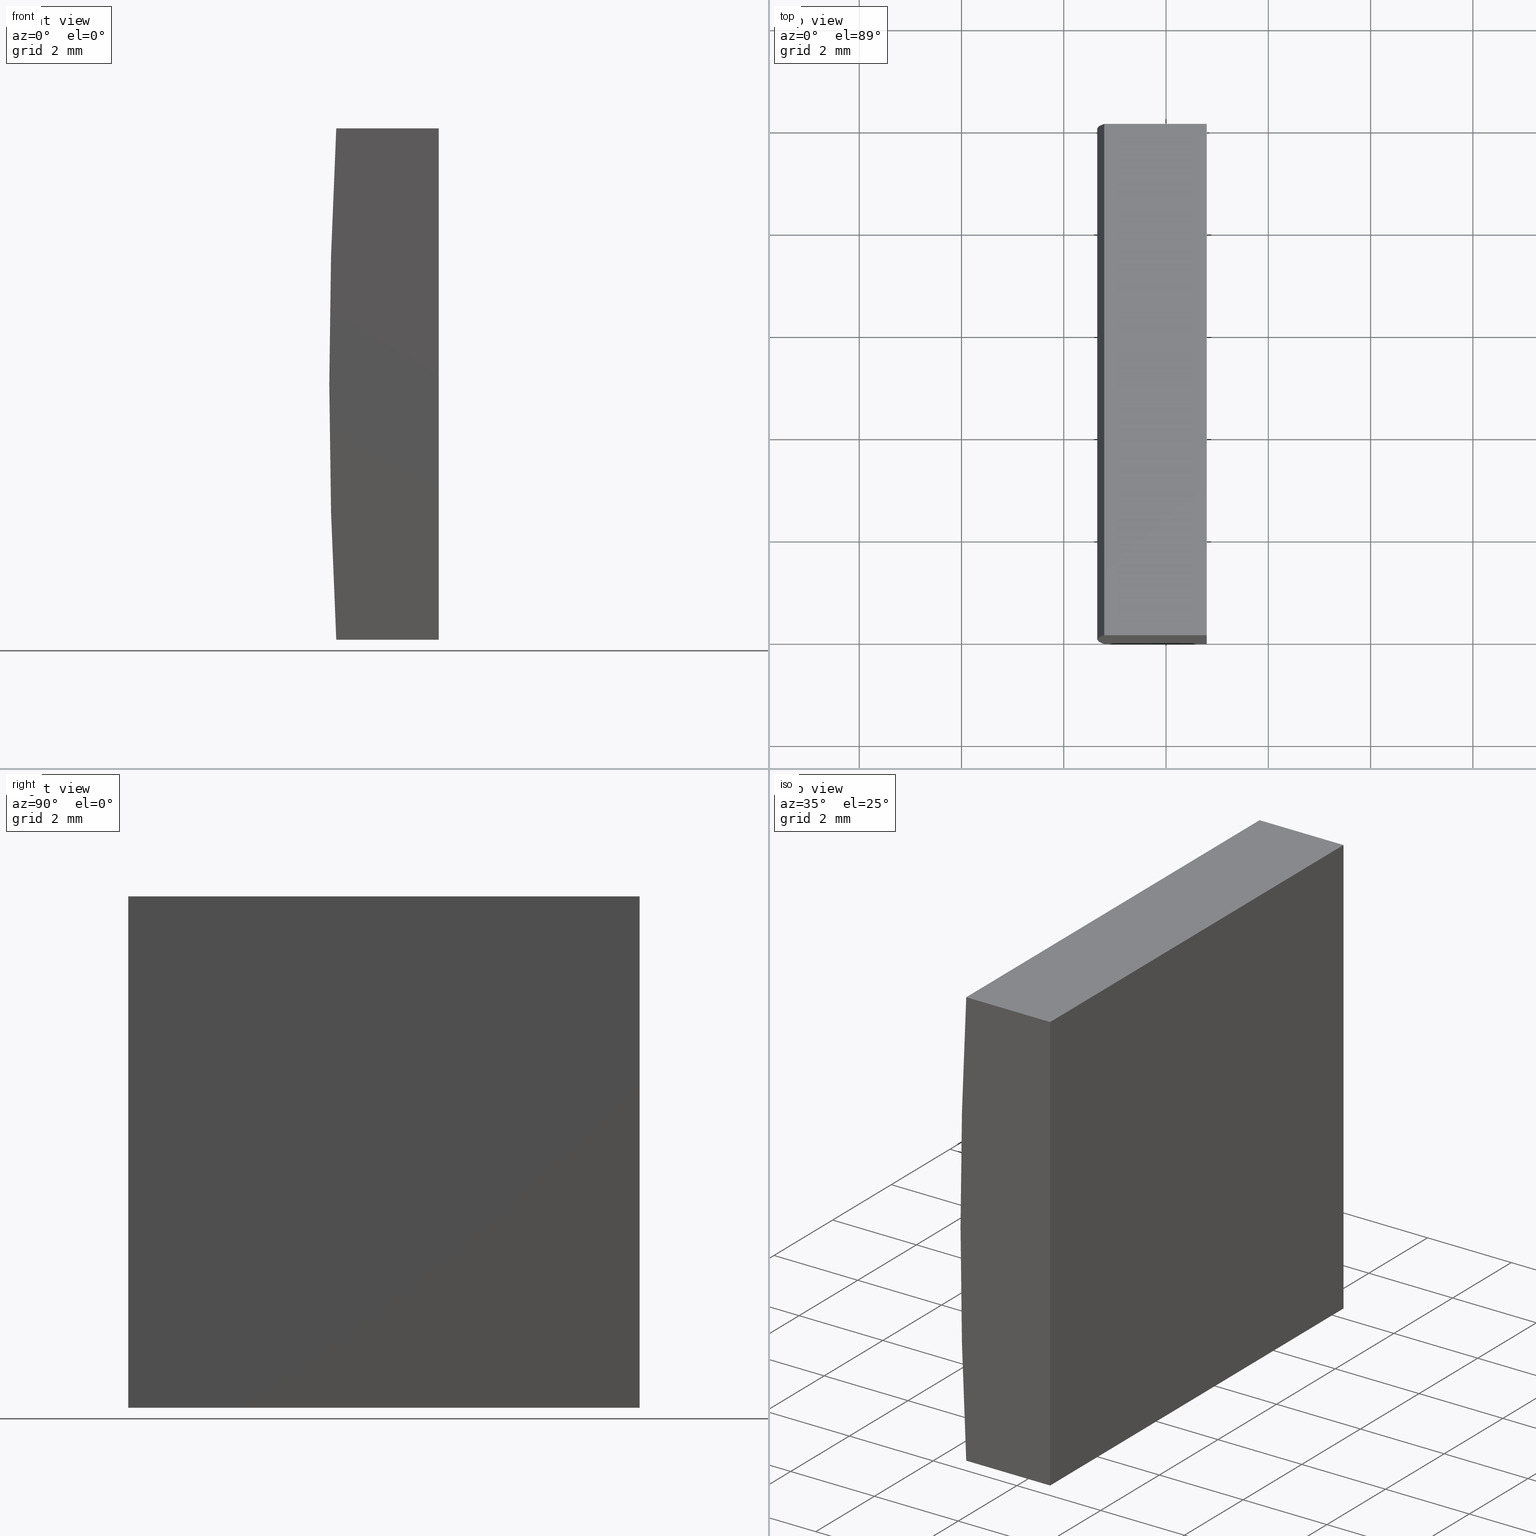
[diagram: canonical four-view strip — front | top / right | iso, engineering-drawing reading convention]
A machine part, canonical four-view strip (front | top / right | iso — engineering-drawing reading convention). The complete STEP part file that produces these views, byte-faithful:
ISO-10303-21;
HEADER;
FILE_DESCRIPTION (( 'STEP AP214' ),
    '1' );
FILE_NAME ('155272.STEP',
    '2019-06-25T06:01:40',
    ( 'user' ),
    ( '΢���й�' ),
    'SwSTEP 2.0',
    'SolidWorks 2016',
    '' );
FILE_SCHEMA (( 'AUTOMOTIVE_DESIGN' ));
ENDSEC;

DATA;
#1 = SURFACE_STYLE_FILL_AREA ( #93 ) ;
#2 = EDGE_CURVE ( 'NONE', #137, #111, #34, .T. ) ;
#3 = LINE ( 'NONE', #196, #155 ) ;
#4 = DIRECTION ( 'NONE',  ( -0.0000000000000000000, -1.000000000000000000, -0.0000000000000000000 ) ) ;
#5 = PRODUCT_DEFINITION_CONTEXT ( 'detailed design', #28, 'design' ) ;
#6 = DIRECTION ( 'NONE',  ( 0.0000000000000000000, 1.000000000000000000, 0.0000000000000000000 ) ) ;
#7 = PRODUCT_DEFINITION ( 'δ֪', '', #169, #5 ) ;
#8 = ORIENTED_EDGE ( 'NONE', *, *, #191, .F. ) ;
#9 =( NAMED_UNIT ( * ) PLANE_ANGLE_UNIT ( ) SI_UNIT ( $, .RADIAN. ) );
#10 = ADVANCED_FACE ( 'NONE', ( #199 ), #98, .F. ) ;
#11 = LINE ( 'NONE', #56, #136 ) ;
#12 = ADVANCED_FACE ( 'NONE', ( #130 ), #51, .F. ) ;
#13 = EDGE_CURVE ( 'NONE', #197, #67, #171, .T. ) ;
#14 = COLOUR_RGB ( '',1.000000000000000000, 1.000000000000000000, 1.000000000000000000 ) ;
#15 = EDGE_LOOP ( 'NONE', ( #118, #105, #8, #97 ) ) ;
#16 = CARTESIAN_POINT ( 'NONE',  ( -85.20479566514873700, 0.0000000000000000000, -4.999999999999987600 ) ) ;
#17 = CIRCLE ( 'NONE', #134, 91.70000000000000300 ) ;
#18 = DIRECTION ( 'NONE',  ( 0.0000000000000000000, 1.000000000000000000, 0.0000000000000000000 ) ) ;
#19 = PRODUCT ( '155272', '155272', '', ( #82 ) ) ;
#20 = EDGE_LOOP ( 'NONE', ( #120, #70, #178, #161 ) ) ;
#21 =( NAMED_UNIT ( * ) PLANE_ANGLE_UNIT ( ) SI_UNIT ( $, .RADIAN. ) );
#22 = PRESENTATION_STYLE_ASSIGNMENT (( #65 ) ) ;
#23 = CLOSED_SHELL ( 'NONE', ( #24, #200, #29, #10, #190, #12 ) ) ;
#24 = ADVANCED_FACE ( 'NONE', ( #147 ), #71, .T. ) ;
#25 = AXIS2_PLACEMENT_3D ( 'NONE', #33, #173, #50 ) ;
#26 = ORIENTED_EDGE ( 'NONE', *, *, #99, .T. ) ;
#27 = DIRECTION ( 'NONE',  ( -1.000000000000000000, -0.0000000000000000000, -6.060670037416406300E-015 ) ) ;
#28 = APPLICATION_CONTEXT ( 'automotive_design' ) ;
#29 = ADVANCED_FACE ( 'NONE', ( #133 ), #72, .F. ) ;
#30 =( NAMED_UNIT ( * ) SI_UNIT ( $, .STERADIAN. ) SOLID_ANGLE_UNIT ( ) );
#31 = ADVANCED_BREP_SHAPE_REPRESENTATION ( '155272', ( #49, #129 ), #88 ) ;
#32 = ORIENTED_EDGE ( 'NONE', *, *, #60, .T. ) ;
#33 = CARTESIAN_POINT ( 'NONE',  ( 4.355204334851265500, 10.00000000000000000, 4.286263797015675000E-017 ) ) ;
#34 = LINE ( 'NONE', #85, #193 ) ;
#35 = DIRECTION ( 'NONE',  ( 0.0000000000000000000, -0.0000000000000000000, 1.000000000000000000 ) ) ;
#36 = ORIENTED_EDGE ( 'NONE', *, *, #110, .T. ) ;
#37 = PRESENTATION_STYLE_ASSIGNMENT (( #91 ) ) ;
#38 = DIRECTION ( 'NONE',  ( 1.000000000000000000, 0.0000000000000000000, 0.0000000000000000000 ) ) ;
#39 = CARTESIAN_POINT ( 'NONE',  ( -87.20838012971630300, 10.00000000000000000, 5.000000000000000000 ) ) ;
#40 = UNCERTAINTY_MEASURE_WITH_UNIT (LENGTH_MEASURE( 1.000000000000000100E-005 ), #138, 'distance_accuracy_value', 'NONE');
#41 = PLANE ( 'NONE',  #124 ) ;
#42 = AXIS2_PLACEMENT_3D ( 'NONE', #94, #152, #181 ) ;
#43 = CARTESIAN_POINT ( 'NONE',  ( 4.355204334851265500, 0.0000000000000000000, 4.286263797015675000E-017 ) ) ;
#44 = ORIENTED_EDGE ( 'NONE', *, *, #2, .F. ) ;
#45 = CARTESIAN_POINT ( 'NONE',  ( -87.20838012971630300, 0.0000000000000000000, 5.000000000000000000 ) ) ;
#46 = AXIS2_PLACEMENT_3D ( 'NONE', #166, #153, #62 ) ;
#47 = VECTOR ( 'NONE', #164, 1000.000000000000000 ) ;
#48 = ORIENTED_EDGE ( 'NONE', *, *, #113, .T. ) ;
#49 = MANIFOLD_SOLID_BREP ( '͹̨-����1', #23 ) ;
#50 = DIRECTION ( 'NONE',  ( 0.0000000000000000000, 0.0000000000000000000, -1.000000000000000000 ) ) ;
#51 = PLANE ( 'NONE',  #52 ) ;
#52 = AXIS2_PLACEMENT_3D ( 'NONE', #165, #18, #35 ) ;
#53 = ORIENTED_EDGE ( 'NONE', *, *, #158, .T. ) ;
#54 =( GEOMETRIC_REPRESENTATION_CONTEXT ( 3 ) GLOBAL_UNCERTAINTY_ASSIGNED_CONTEXT ( ( #78 ) ) GLOBAL_UNIT_ASSIGNED_CONTEXT ( ( #167, #21, #89 ) ) REPRESENTATION_CONTEXT ( 'NONE', 'WORKASPACE' ) );
#55 = VECTOR ( 'NONE', #162, 1000.000000000000000 ) ;
#56 = CARTESIAN_POINT ( 'NONE',  ( -85.20479566514873700, 0.0000000000000000000, -4.999999999999987600 ) ) ;
#57 = DIRECTION ( 'NONE',  ( -0.0000000000000000000, -1.000000000000000000, -0.0000000000000000000 ) ) ;
#58 = DIRECTION ( 'NONE',  ( 0.0000000000000000000, 1.000000000000000000, 0.0000000000000000000 ) ) ;
#59 = ORIENTED_EDGE ( 'NONE', *, *, #60, .F. ) ;
#60 = EDGE_CURVE ( 'NONE', #197, #107, #126, .T. ) ;
#61 = LINE ( 'NONE', #195, #114 ) ;
#62 = DIRECTION ( 'NONE',  ( 1.000000000000000000, 0.0000000000000000000, 6.060670037416406300E-015 ) ) ;
#63 = ORIENTED_EDGE ( 'NONE', *, *, #149, .F. ) ;
#64 = VECTOR ( 'NONE', #179, 1000.000000000000000 ) ;
#65 = SURFACE_STYLE_USAGE ( .BOTH. , #112 ) ;
#66 = AXIS2_PLACEMENT_3D ( 'NONE', #43, #6, #141 ) ;
#67 = VERTEX_POINT ( 'NONE', #146 ) ;
#68 = DIRECTION ( 'NONE',  ( 0.0000000000000000000, 0.0000000000000000000, 1.000000000000000000 ) ) ;
#69 = APPLICATION_PROTOCOL_DEFINITION ( 'draft international standard', 'automotive_design', 1998, #148 ) ;
#70 = ORIENTED_EDGE ( 'NONE', *, *, #158, .F. ) ;
#71 = CYLINDRICAL_SURFACE ( 'NONE', #25, 91.70000000000000300 ) ;
#72 = PLANE ( 'NONE',  #42 ) ;
#73 = EDGE_CURVE ( 'NONE', #107, #139, #144, .T. ) ;
#74 = FACE_OUTER_BOUND ( 'NONE', #192, .T. ) ;
#75 = DIRECTION ( 'NONE',  ( 1.000000000000000000, 0.0000000000000000000, 0.0000000000000000000 ) ) ;
#76 = ORIENTED_EDGE ( 'NONE', *, *, #73, .T. ) ;
#77 = SURFACE_STYLE_FILL_AREA ( #90 ) ;
#78 = UNCERTAINTY_MEASURE_WITH_UNIT (LENGTH_MEASURE( 1.000000000000000100E-005 ), #167, 'distance_accuracy_value', 'NONE');
#79 = PRESENTATION_LAYER_ASSIGNMENT (  '', '', ( #170 ) ) ;
#80 = EDGE_LOOP ( 'NONE', ( #184, #32, #36, #26 ) ) ;
#81 = CARTESIAN_POINT ( 'NONE',  ( -85.20479566514873700, 10.00000000000000000, -4.999999999999987600 ) ) ;
#82 = PRODUCT_CONTEXT ( 'NONE', #148, 'mechanical' ) ;
#83 = ORIENTED_EDGE ( 'NONE', *, *, #73, .F. ) ;
#84 = CARTESIAN_POINT ( 'NONE',  ( 0.0000000000000000000, 0.0000000000000000000, 0.0000000000000000000 ) ) ;
#85 = CARTESIAN_POINT ( 'NONE',  ( -85.20479566514873700, 10.00000000000000000, -4.999999999999987600 ) ) ;
#86 = PRODUCT_RELATED_PRODUCT_CATEGORY ( 'part', '', ( #19 ) ) ;
#87 = ORIENTED_EDGE ( 'NONE', *, *, #110, .F. ) ;
#88 =( GEOMETRIC_REPRESENTATION_CONTEXT ( 3 ) GLOBAL_UNCERTAINTY_ASSIGNED_CONTEXT ( ( #40 ) ) GLOBAL_UNIT_ASSIGNED_CONTEXT ( ( #138, #9, #140 ) ) REPRESENTATION_CONTEXT ( 'NONE', 'WORKASPACE' ) );
#89 =( NAMED_UNIT ( * ) SI_UNIT ( $, .STERADIAN. ) SOLID_ANGLE_UNIT ( ) );
#90 = FILL_AREA_STYLE ('',( #119 ) ) ;
#91 = SURFACE_STYLE_USAGE ( .BOTH. , #183 ) ;
#92 = FILL_AREA_STYLE_COLOUR ( '', #135 ) ;
#93 = FILL_AREA_STYLE ('',( #92 ) ) ;
#94 = CARTESIAN_POINT ( 'NONE',  ( -85.20479566514873700, 10.00000000000000000, -4.999999999999987600 ) ) ;
#95 = MECHANICAL_DESIGN_GEOMETRIC_PRESENTATION_REPRESENTATION (  '', ( #170 ), #54 ) ;
#96 = LINE ( 'NONE', #131, #64 ) ;
#97 = ORIENTED_EDGE ( 'NONE', *, *, #108, .F. ) ;
#98 = PLANE ( 'NONE',  #46 ) ;
#99 = EDGE_CURVE ( 'NONE', #137, #145, #3, .T. ) ;
#100 = SHAPE_DEFINITION_REPRESENTATION ( #186, #31 ) ;
#101 = AXIS2_PLACEMENT_3D ( 'NONE', #203, #202, #189 ) ;
#102 = DIRECTION ( 'NONE',  ( -1.000000000000000000, -0.0000000000000000000, -6.060670037416406300E-015 ) ) ;
#103 = ORIENTED_EDGE ( 'NONE', *, *, #13, .T. ) ;
#104 =( LENGTH_UNIT ( ) NAMED_UNIT ( * ) SI_UNIT ( .MILLI., .METRE. ) );
#105 = ORIENTED_EDGE ( 'NONE', *, *, #160, .F. ) ;
#106 = CARTESIAN_POINT ( 'NONE',  ( -85.20479566514873700, 10.00000000000000000, 5.000000000000000000 ) ) ;
#107 = VERTEX_POINT ( 'NONE', #106 ) ;
#108 = EDGE_CURVE ( 'NONE', #67, #139, #125, .T. ) ;
#109 = DIRECTION ( 'NONE',  ( 0.0000000000000000000, -0.0000000000000000000, 1.000000000000000000 ) ) ;
#110 = EDGE_CURVE ( 'NONE', #107, #137, #123, .T. ) ;
#111 = VERTEX_POINT ( 'NONE', #16 ) ;
#112 = SURFACE_SIDE_STYLE ('',( #1 ) ) ;
#113 = EDGE_CURVE ( 'NONE', #117, #67, #176, .T. ) ;
#114 = VECTOR ( 'NONE', #102, 1000.000000000000000 ) ;
#115 = UNCERTAINTY_MEASURE_WITH_UNIT (LENGTH_MEASURE( 1.000000000000000100E-005 ), #104, 'distance_accuracy_value', 'NONE');
#116 = CARTESIAN_POINT ( 'NONE',  ( 4.355204334851265500, 10.00000000000000000, 4.286263797015675000E-017 ) ) ;
#117 = VERTEX_POINT ( 'NONE', #157 ) ;
#118 = ORIENTED_EDGE ( 'NONE', *, *, #113, .F. ) ;
#119 = FILL_AREA_STYLE_COLOUR ( '', #14 ) ;
#120 = ORIENTED_EDGE ( 'NONE', *, *, #160, .T. ) ;
#121 = CARTESIAN_POINT ( 'NONE',  ( -85.20479566514873700, 10.00000000000000000, 5.000000000000000000 ) ) ;
#122 = DIRECTION ( 'NONE',  ( -0.0000000000000000000, -1.000000000000000000, -0.0000000000000000000 ) ) ;
#123 = LINE ( 'NONE', #81, #55 ) ;
#124 = AXIS2_PLACEMENT_3D ( 'NONE', #150, #58, #109 ) ;
#125 = LINE ( 'NONE', #45, #47 ) ;
#126 = LINE ( 'NONE', #168, #194 ) ;
#127 = PLANE ( 'NONE',  #101 ) ;
#128 = CARTESIAN_POINT ( 'NONE',  ( -87.20838012971630300, 10.00000000000000000, 5.000000000000000000 ) ) ;
#129 = AXIS2_PLACEMENT_3D ( 'NONE', #84, #68, #38 ) ;
#130 = FACE_OUTER_BOUND ( 'NONE', #15, .T. ) ;
#131 = CARTESIAN_POINT ( 'NONE',  ( -87.20838012971630300, 10.00000000000000000, -5.000000000000000000 ) ) ;
#132 = ORIENTED_EDGE ( 'NONE', *, *, #108, .T. ) ;
#133 = FACE_OUTER_BOUND ( 'NONE', #156, .T. ) ;
#134 = AXIS2_PLACEMENT_3D ( 'NONE', #116, #185, #175 ) ;
#135 = COLOUR_RGB ( '',1.000000000000000000, 1.000000000000000000, 1.000000000000000000 ) ;
#136 = VECTOR ( 'NONE', #142, 1000.000000000000000 ) ;
#137 = VERTEX_POINT ( 'NONE', #204 ) ;
#138 =( LENGTH_UNIT ( ) NAMED_UNIT ( * ) SI_UNIT ( .MILLI., .METRE. ) );
#139 = VERTEX_POINT ( 'NONE', #177 ) ;
#140 =( NAMED_UNIT ( * ) SI_UNIT ( $, .STERADIAN. ) SOLID_ANGLE_UNIT ( ) );
#141 = DIRECTION ( 'NONE',  ( 0.0000000000000000000, 0.0000000000000000000, 1.000000000000000000 ) ) ;
#142 = DIRECTION ( 'NONE',  ( -0.0000000000000000000, -0.0000000000000000000, -1.000000000000000000 ) ) ;
#143 = PRESENTATION_LAYER_ASSIGNMENT (  '', '', ( #180 ) ) ;
#144 = LINE ( 'NONE', #121, #188 ) ;
#145 = VERTEX_POINT ( 'NONE', #182 ) ;
#146 = CARTESIAN_POINT ( 'NONE',  ( -87.20838012971630300, 0.0000000000000000000, 5.000000000000000000 ) ) ;
#147 = FACE_OUTER_BOUND ( 'NONE', #201, .T. ) ;
#148 = APPLICATION_CONTEXT ( 'automotive_design' ) ;
#149 = EDGE_CURVE ( 'NONE', #145, #197, #17, .T. ) ;
#150 = CARTESIAN_POINT ( 'NONE',  ( 4.355204334851265500, 10.00000000000000000, 4.286263797015675000E-017 ) ) ;
#151 = VECTOR ( 'NONE', #4, 1000.000000000000000 ) ;
#152 = DIRECTION ( 'NONE',  ( -1.000000000000000000, 0.0000000000000000000, 0.0000000000000000000 ) ) ;
#153 = DIRECTION ( 'NONE',  ( -6.060670037416406300E-015, 0.0000000000000000000, 1.000000000000000000 ) ) ;
#154 = FACE_OUTER_BOUND ( 'NONE', #80, .T. ) ;
#155 = VECTOR ( 'NONE', #27, 1000.000000000000000 ) ;
#156 = EDGE_LOOP ( 'NONE', ( #174, #44, #87, #76 ) ) ;
#157 = CARTESIAN_POINT ( 'NONE',  ( -87.20838012971630300, 0.0000000000000000000, -5.000000000000000000 ) ) ;
#158 = EDGE_CURVE ( 'NONE', #145, #117, #96, .T. ) ;
#159 =( GEOMETRIC_REPRESENTATION_CONTEXT ( 3 ) GLOBAL_UNCERTAINTY_ASSIGNED_CONTEXT ( ( #115 ) ) GLOBAL_UNIT_ASSIGNED_CONTEXT ( ( #104, #187, #30 ) ) REPRESENTATION_CONTEXT ( 'NONE', 'WORKASPACE' ) );
#160 = EDGE_CURVE ( 'NONE', #111, #117, #61, .T. ) ;
#161 = ORIENTED_EDGE ( 'NONE', *, *, #2, .T. ) ;
#162 = DIRECTION ( 'NONE',  ( -0.0000000000000000000, -0.0000000000000000000, -1.000000000000000000 ) ) ;
#163 = ORIENTED_EDGE ( 'NONE', *, *, #13, .F. ) ;
#164 = DIRECTION ( 'NONE',  ( 1.000000000000000000, 0.0000000000000000000, 0.0000000000000000000 ) ) ;
#165 = CARTESIAN_POINT ( 'NONE',  ( 4.355204334851265500, 0.0000000000000000000, 4.286263797015675000E-017 ) ) ;
#166 = CARTESIAN_POINT ( 'NONE',  ( -87.20838012971630300, 10.00000000000000000, -5.000000000000000000 ) ) ;
#167 =( LENGTH_UNIT ( ) NAMED_UNIT ( * ) SI_UNIT ( .MILLI., .METRE. ) );
#168 = CARTESIAN_POINT ( 'NONE',  ( -87.20838012971630300, 10.00000000000000000, 5.000000000000000000 ) ) ;
#169 = PRODUCT_DEFINITION_FORMATION_WITH_SPECIFIED_SOURCE ( '�κ�', '', #19, .NOT_KNOWN. ) ;
#170 = STYLED_ITEM ( 'NONE', ( #37 ), #49 ) ;
#171 = LINE ( 'NONE', #39, #151 ) ;
#172 = APPLICATION_PROTOCOL_DEFINITION ( 'draft international standard', 'automotive_design', 1998, #28 ) ;
#173 = DIRECTION ( 'NONE',  ( -0.0000000000000000000, -1.000000000000000000, -0.0000000000000000000 ) ) ;
#174 = ORIENTED_EDGE ( 'NONE', *, *, #191, .T. ) ;
#175 = DIRECTION ( 'NONE',  ( 0.0000000000000000000, 0.0000000000000000000, 1.000000000000000000 ) ) ;
#176 = CIRCLE ( 'NONE', #66, 91.70000000000000300 ) ;
#177 = CARTESIAN_POINT ( 'NONE',  ( -85.20479566514873700, 0.0000000000000000000, 5.000000000000000000 ) ) ;
#178 = ORIENTED_EDGE ( 'NONE', *, *, #99, .F. ) ;
#179 = DIRECTION ( 'NONE',  ( -0.0000000000000000000, -1.000000000000000000, -0.0000000000000000000 ) ) ;
#180 = STYLED_ITEM ( 'NONE', ( #22 ), #31 ) ;
#181 = DIRECTION ( 'NONE',  ( 0.0000000000000000000, 0.0000000000000000000, 1.000000000000000000 ) ) ;
#182 = CARTESIAN_POINT ( 'NONE',  ( -87.20838012971630300, 10.00000000000000000, -5.000000000000000000 ) ) ;
#183 = SURFACE_SIDE_STYLE ('',( #77 ) ) ;
#184 = ORIENTED_EDGE ( 'NONE', *, *, #149, .T. ) ;
#185 = DIRECTION ( 'NONE',  ( 0.0000000000000000000, 1.000000000000000000, 0.0000000000000000000 ) ) ;
#186 = PRODUCT_DEFINITION_SHAPE ( 'NONE', 'NONE',  #7 ) ;
#187 =( NAMED_UNIT ( * ) PLANE_ANGLE_UNIT ( ) SI_UNIT ( $, .RADIAN. ) );
#188 = VECTOR ( 'NONE', #122, 1000.000000000000000 ) ;
#189 = DIRECTION ( 'NONE',  ( -1.000000000000000000, 0.0000000000000000000, -0.0000000000000000000 ) ) ;
#190 = ADVANCED_FACE ( 'NONE', ( #154 ), #41, .T. ) ;
#191 = EDGE_CURVE ( 'NONE', #139, #111, #11, .T. ) ;
#192 = EDGE_LOOP ( 'NONE', ( #132, #83, #59, #103 ) ) ;
#193 = VECTOR ( 'NONE', #57, 1000.000000000000000 ) ;
#194 = VECTOR ( 'NONE', #75, 1000.000000000000000 ) ;
#195 = CARTESIAN_POINT ( 'NONE',  ( -87.20838012971630300, 0.0000000000000000000, -5.000000000000000000 ) ) ;
#196 = CARTESIAN_POINT ( 'NONE',  ( -87.20838012971630300, 10.00000000000000000, -5.000000000000000000 ) ) ;
#197 = VERTEX_POINT ( 'NONE', #128 ) ;
#198 = MECHANICAL_DESIGN_GEOMETRIC_PRESENTATION_REPRESENTATION (  '', ( #180 ), #159 ) ;
#199 = FACE_OUTER_BOUND ( 'NONE', #20, .T. ) ;
#200 = ADVANCED_FACE ( 'NONE', ( #74 ), #127, .F. ) ;
#201 = EDGE_LOOP ( 'NONE', ( #48, #163, #63, #53 ) ) ;
#202 = DIRECTION ( 'NONE',  ( 0.0000000000000000000, 0.0000000000000000000, -1.000000000000000000 ) ) ;
#203 = CARTESIAN_POINT ( 'NONE',  ( -87.20838012971630300, 10.00000000000000000, 5.000000000000000000 ) ) ;
#204 = CARTESIAN_POINT ( 'NONE',  ( -85.20479566514873700, 10.00000000000000000, -4.999999999999987600 ) ) ;
ENDSEC;
END-ISO-10303-21;
